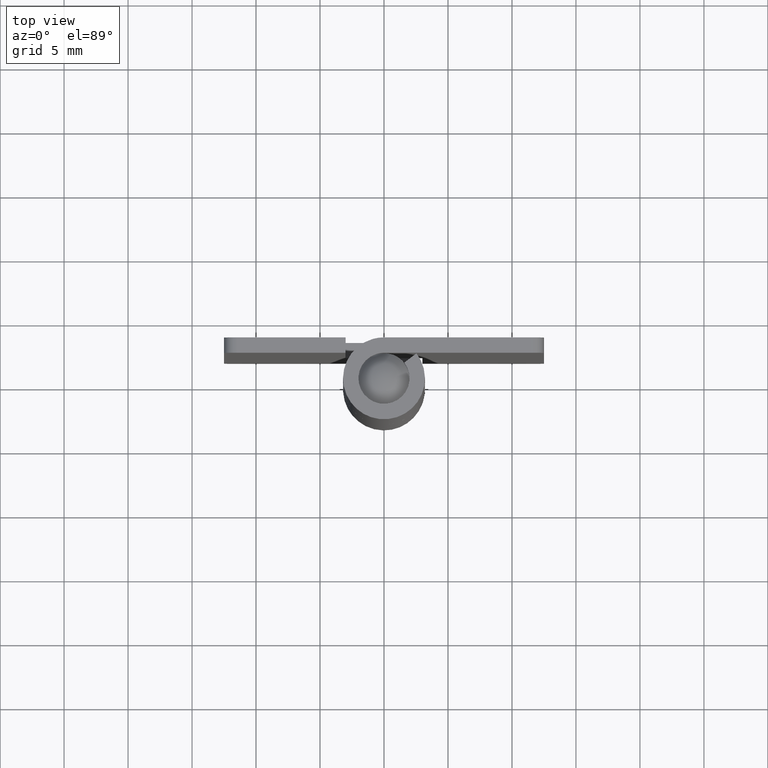
[diagram: clean part render]
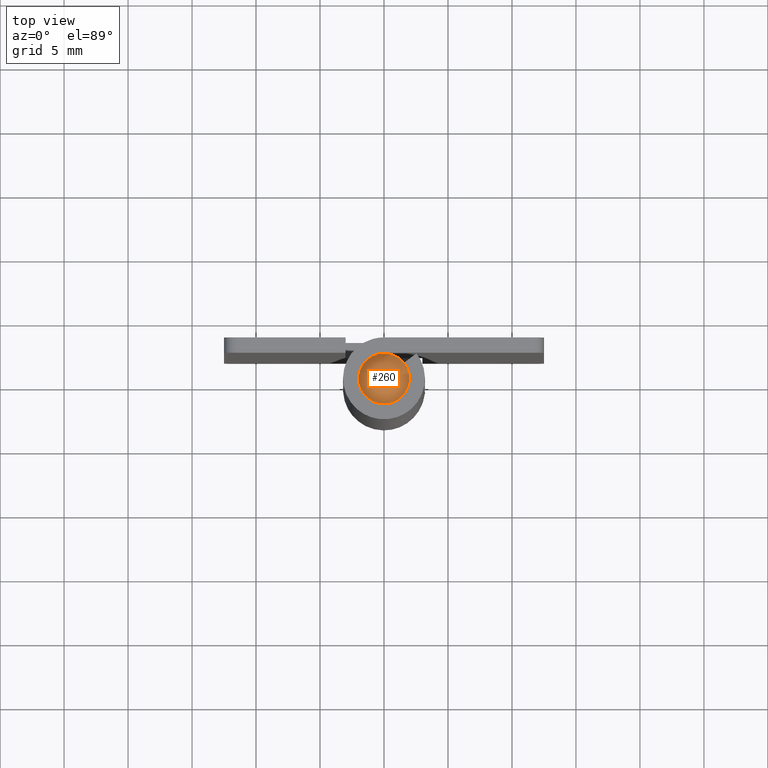
[diagram: same view with one face highlighted and labeled with its STEP entity id]
A machine part, top view. The second image highlights one B-rep face of the part: STEP entity #260.
In plain terms, the highlighted face is a freeform B-spline surface patch.
Its self-contained STEP definition (entity closure, byte-faithful):
#66=CARTESIAN_POINT('',(-0.236068471325678,1.986019069515340,47.999999977455801));
#67=VERTEX_POINT('',#66);
#68=CARTESIAN_POINT('',(2.000000016908155,0.0,47.999999977455801));
#69=VERTEX_POINT('',#68);
#70=CARTESIAN_POINT('',(-0.236068471325679,1.986019069515340,47.999999977455801));
#71=CARTESIAN_POINT('',(-0.118448240321785,2.000000016908155,47.999999977455801));
#72=CARTESIAN_POINT('',(0.0,2.000000016908155,47.999999977455801));
#73=CARTESIAN_POINT('',(2.000000016908155,2.000000016908155,47.999999977455786));
#74=CARTESIAN_POINT('',(2.000000016908155,0.0,47.999999977455801));
#82=(BOUNDED_CURVE()B_SPLINE_CURVE(2,(#70,#71,#72,#73,#74),.UNSPECIFIED.,.F.,.U.)B_SPLINE_CURVE_WITH_KNOTS((3,2,3),(0.229562473512850,0.250000000000000,0.500000000000000),.UNSPECIFIED.)CURVE()GEOMETRIC_REPRESENTATION_ITEM()RATIONAL_B_SPLINE_CURVE((0.956026754182408,0.976055948330373,1.0,0.707106781186548,1.0))REPRESENTATION_ITEM(''));
#83=EDGE_CURVE('',#67,#69,#82,.T.);
#85=CARTESIAN_POINT('',(0.122097080164815,-1.996269613716506,47.999999977455801));
#86=VERTEX_POINT('',#85);
#87=CARTESIAN_POINT('',(2.000000016908155,0.0,47.999999977455801));
#88=CARTESIAN_POINT('',(2.000000016908155,-1.881412149598245,47.999999977455793));
#89=CARTESIAN_POINT('',(0.122097080164815,-1.996269613716506,47.999999977455801));
#97=(BOUNDED_CURVE()B_SPLINE_CURVE(2,(#87,#88,#89),.UNSPECIFIED.,.F.,.U.)B_SPLINE_CURVE_WITH_KNOTS((3,3),(0.500000000000000,0.739332962231098),.UNSPECIFIED.)CURVE()GEOMETRIC_REPRESENTATION_ITEM()RATIONAL_B_SPLINE_CURVE((1.0,0.719603993295901,0.976072041649905))REPRESENTATION_ITEM(''));
#98=EDGE_CURVE('',#69,#86,#97,.T.);
#165=CARTESIAN_POINT('',(-2.000000016908155,0.0,47.999999977455801));
#166=VERTEX_POINT('',#165);
#167=CARTESIAN_POINT('',(-2.000000016908155,0.0,47.999999977455801));
#168=CARTESIAN_POINT('',(-2.000000016908155,1.776349066890546,47.999999977455793));
#169=CARTESIAN_POINT('',(-0.236068471325679,1.986019069515340,47.999999977455801));
#177=(BOUNDED_CURVE()B_SPLINE_CURVE(2,(#167,#168,#169),.UNSPECIFIED.,.F.,.U.)B_SPLINE_CURVE_WITH_KNOTS((3,3),(0.0,0.229562473512850),.UNSPECIFIED.)CURVE()GEOMETRIC_REPRESENTATION_ITEM()RATIONAL_B_SPLINE_CURVE((1.0,0.731050832856174,0.956026754182408))REPRESENTATION_ITEM(''));
#178=EDGE_CURVE('',#166,#67,#177,.T.);
#212=CARTESIAN_POINT('',(0.122097080164815,-1.996269613716505,47.999999977455801));
#213=CARTESIAN_POINT('',(0.061105527176828,-2.000000016908155,47.999999977455801));
#214=CARTESIAN_POINT('',(0.0,-2.000000016908155,47.999999977455801));
#215=CARTESIAN_POINT('',(-2.000000016908155,-2.000000016908155,47.999999977455786));
#216=CARTESIAN_POINT('',(-2.000000016908155,0.0,47.999999977455801));
#224=(BOUNDED_CURVE()B_SPLINE_CURVE(2,(#212,#213,#214,#215,#216),.UNSPECIFIED.,.F.,.U.)B_SPLINE_CURVE_WITH_KNOTS((3,2,3),(0.739332962231098,0.750000000000000,1.0),.UNSPECIFIED.)CURVE()GEOMETRIC_REPRESENTATION_ITEM()RATIONAL_B_SPLINE_CURVE((0.976072041649904,0.987502787890646,1.0,0.707106781186548,1.0))REPRESENTATION_ITEM(''));
#225=EDGE_CURVE('',#86,#166,#224,.T.);
#230=CARTESIAN_POINT('',(-1.713371560615220,-1.713333714347708,47.115504247389424));
#231=CARTESIAN_POINT('',(-1.055621620532510,-2.111196606302123,47.838973072745844));
#232=CARTESIAN_POINT('',(1.055621620532508,-2.111196606302123,47.838973072745844));
#233=CARTESIAN_POINT('',(1.713371560615218,-1.713333714347708,47.115504247389424));
#234=CARTESIAN_POINT('',(-2.111221582883406,-1.055587474299456,47.838933690653604));
#235=CARTESIAN_POINT('',(-1.374874999810141,-1.374844630514751,49.0));
#236=CARTESIAN_POINT('',(1.374874999810137,-1.374844630514751,49.0));
#237=CARTESIAN_POINT('',(2.111221582883403,-1.055587474299456,47.838933690653604));
#238=CARTESIAN_POINT('',(-2.111221582883406,1.055593334327881,47.838933690653604));
#239=CARTESIAN_POINT('',(-1.374874999810141,1.374852262879486,49.0));
#240=CARTESIAN_POINT('',(1.374874999810137,1.374852262879486,49.0));
#241=CARTESIAN_POINT('',(2.111221582883403,1.055593334327882,47.838933690653604));
#242=CARTESIAN_POINT('',(-1.713367975749352,1.713339641007028,47.115497728858898));
#243=CARTESIAN_POINT('',(-1.055618898983619,2.111202883471439,47.838963175304620));
#244=CARTESIAN_POINT('',(1.055618898983618,2.111202883471439,47.838963175304620));
#245=CARTESIAN_POINT('',(1.713367975749351,1.713339641007028,47.115497728858898));
#253=(BOUNDED_SURFACE()B_SPLINE_SURFACE(2,2,((#230,#234,#238,#242),(#231,#235,#239,#243),(#232,#236,#240,#244),(#233,#237,#241,#245)),.UNSPECIFIED.,.F.,.F.,.U.)B_SPLINE_SURFACE_WITH_KNOTS((3,1,3),(3,1,3),(0.0,2.388554753907767,4.777109507815533),(0.0,2.388501993675092,4.777017246970934),.UNSPECIFIED.)GEOMETRIC_REPRESENTATION_ITEM()RATIONAL_B_SPLINE_SURFACE(((1.604876643705308,1.302445002416469,1.302445002416469,1.604880001575645),(1.302431641288838,1.0,1.0,1.302434999159176),(1.302431641288838,1.0,1.0,1.302434999159176),(1.604876643705308,1.302445002416469,1.302445002416469,1.604880001575645)))REPRESENTATION_ITEM('')SURFACE());
#254=ORIENTED_EDGE('',*,*,#225,.F.);
#255=ORIENTED_EDGE('',*,*,#98,.F.);
#256=ORIENTED_EDGE('',*,*,#83,.F.);
#257=ORIENTED_EDGE('',*,*,#178,.F.);
#258=EDGE_LOOP('',(#254,#255,#256,#257));
#259=FACE_OUTER_BOUND('',#258,.T.);
#260=ADVANCED_FACE('',(#259),#253,.T.);